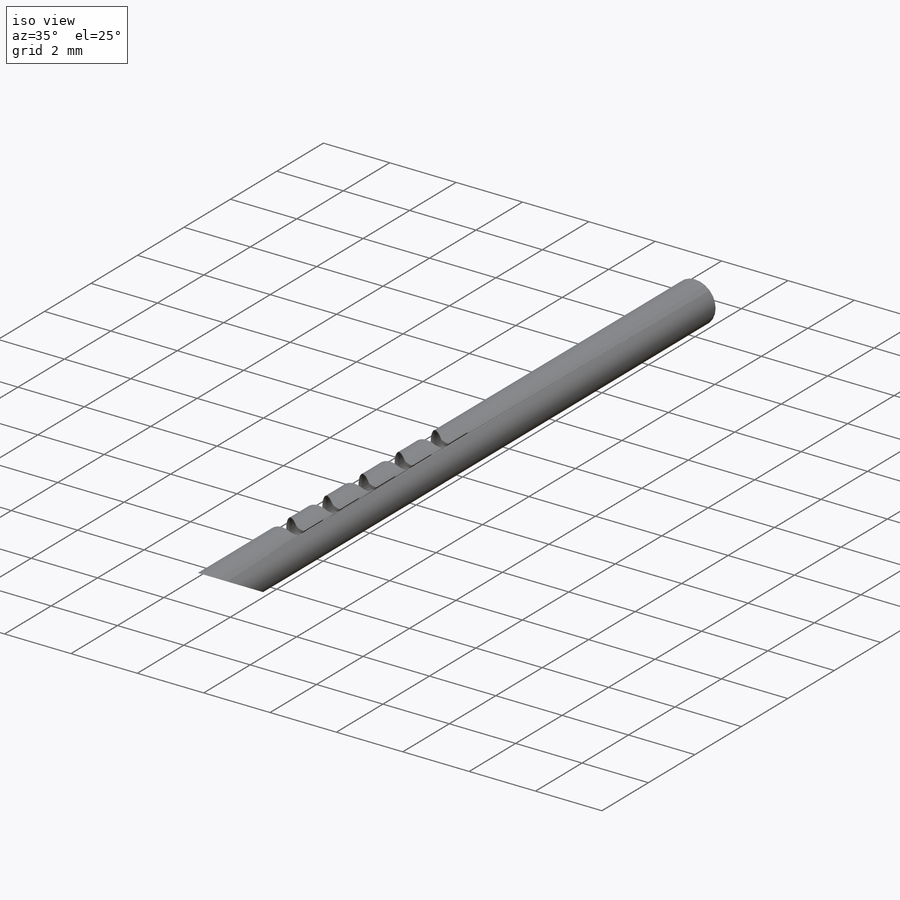
[diagram: iso view]
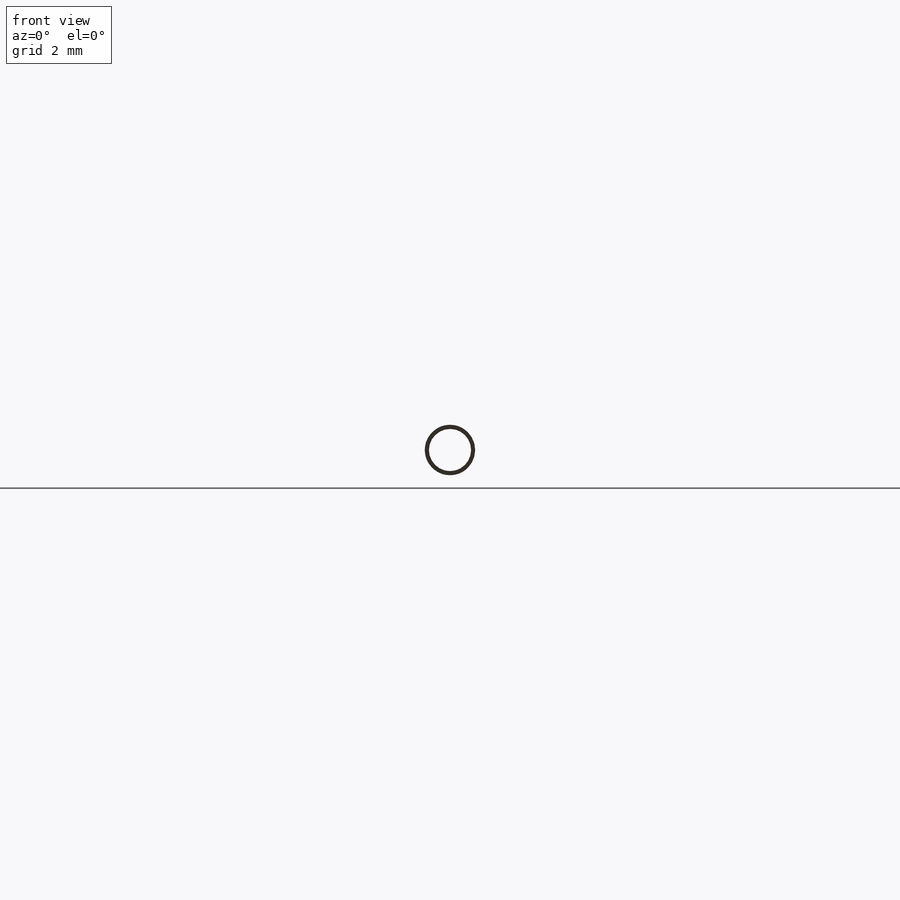
[diagram: front view]
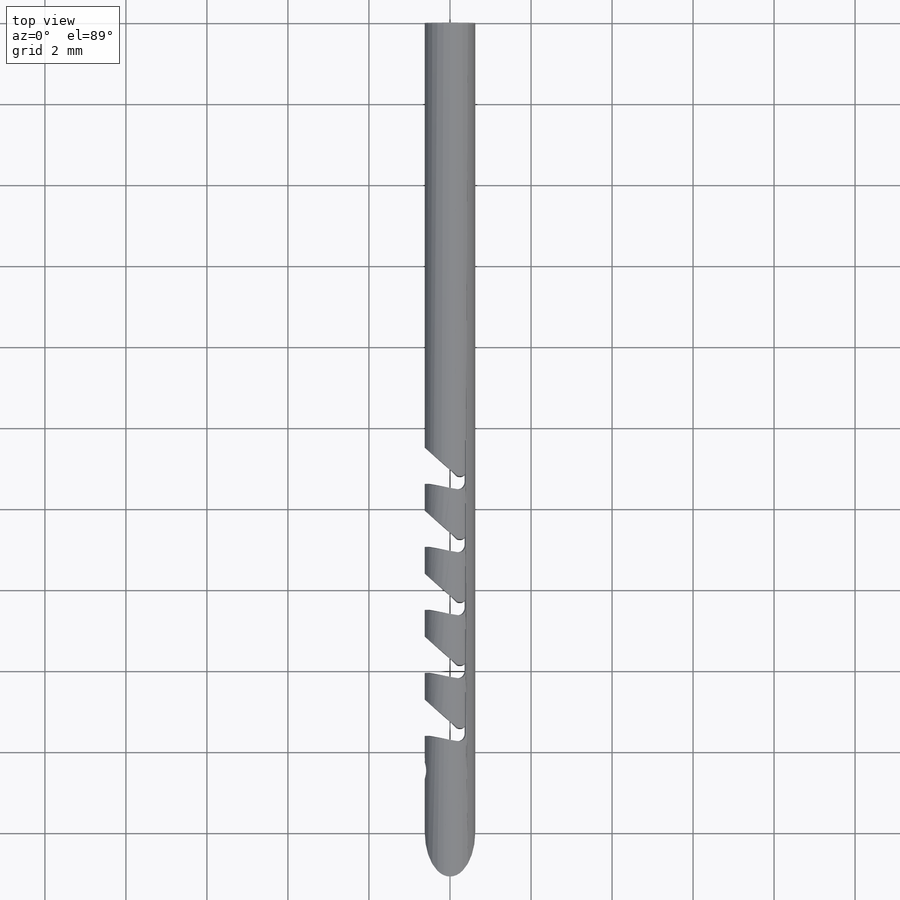
[diagram: top view]
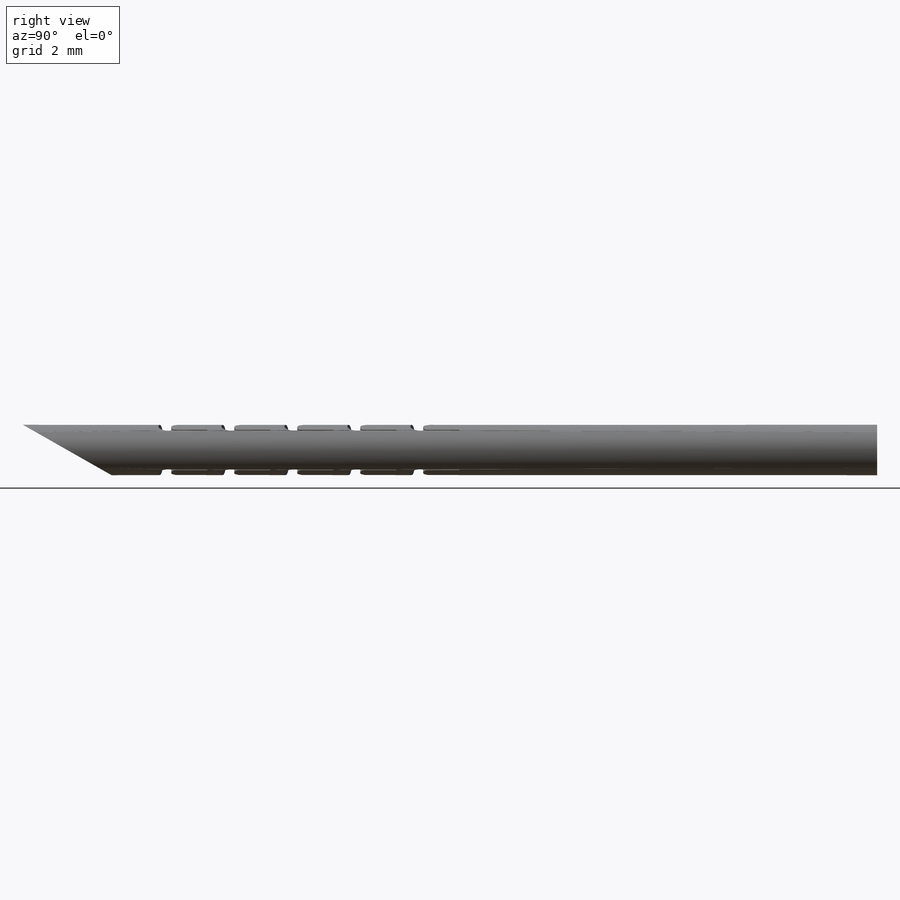
[diagram: right view]
SOLIDWORKS PART (.sldprt)
format: sldprt  version: not decoded by parser v0  size: 819,200 bytes
history: native  units: mm
features: sketch x11, cut_extrude x3, fillet x3, extrude x3, pattern_linear x2, mirror x2, material x1, surface_op x1, boolean_combine x1 (+14 scaffold rows collapsed; 1 parser-record rows omitted)
feature tree (42):
  scaffold x14  (default folders/planes/origin — collapsed)
  material  "Material <not specified>"
  sketch  "Sketch1"  dims[D1=0.622mm]
  parser-record x1  (decoder bookkeeping rows leaked as tree rows — omitted from the tree; the rows remain in map.json)
  surface_op  "Surface-Extrude1"
  sketch  "Sketch3"  dims[c1.D4=~1.041228mm c1.D1=0.3732mm c1.D2=~0.503794mm c2.D2=15.0deg c2.D3=~0.520614mm c2.D4=~0.042451mm]
  sketch  "3DSketch1"  dims[c1.D1=~0.688712mm c2.D1=0.0mm c3.D1=~1.404961mm c4.D1=0.0mm c5.D1=0.311mm c5.D2=1.244mm c5.D3=~0.065037mm c6.D3=~0.01432mm c7.D3=~1.28053mm c8.D3=~0.394529mm c9.D3=~0.126738mm c10.D3=~1.476338mm c11.D3=0.02mm]
  sketch  "Sketch4"  dims[c1.D2=~0.096809mm c1.D10=~0.378569mm c1.D5=~0.193326mm c1.D1=0.311mm c2.D2=0.3732mm c2.D3=~1.155624mm c3.D3=35.0deg c3.D4=0.9952mm c3.D5=0.9952mm c3.D2=~0.307039mm c3.D6=0.7403mm c4.D3=0.622mm c4.D4=0.175mm c4.D6=~0.513245mm c4.D2=~0.327975mm c5.D6=~0.023466mm c5.D2=~0.096809mm c6.D6=~0.914157mm c6.D2=0.894mm c7.D6=1.0152mm c7.D7=1.244mm c7.D8=0.3932mm c7.D9=1.0574mm c7.D10=~0.329476mm c7.D5=0.9952mm c8.D10=~0.640912mm c8.D5=0.3mm c8.D1=~0.101386mm]
  cut_extrude  "Cut-Extrude1"  [1 undecoded]
  sketch  "3DSketch3"  dims[c1.D1=~0.834388mm c2.D1=~0.93274mm c3.D1=~0.834388mm c3.D2=~0.811743mm c4.D1=0.311mm c4.D2=~0.805021mm c5.D2=~0.209513mm c6.D2=~1.475119mm c7.D2=~0.848041mm c8.D2=~1.424856mm c8.D3=~1.424856mm c9.D2=1.244mm c9.D3=~0.044562mm c10.D3=~1.40984mm c11.D3=~0.227643mm c12.D3=~0.044562mm]
  sketch  "3DSketch1<2>"
  fillet  "Fillet4"  Radius=0.2mm Persist_Attrib_Count_Val=2
  fillet  "ANSYS_Persist_Key_1"  Radius=0mm ANS_PERSIST_KEY=0mm ANSYS_Persist_Key_Value=0mm
  pattern_linear  "LPattern3"  Count1=5 Count2=1 Spacing1=1.555mm Spacing2=50mm
  fillet  "ANSYS_Persist_Key_2"  Radius=0mm ANSYS_Persist_Key_Value=0mm
  boolean_combine  "Combine1"
  sketch  "Sketch5"  dims[D1=~1.518856mm]
  extrude  "Boss-Extrude1"  Depth=10mm
  sketch  "Sketch6"  dims[D1=~2.125744mm]
  extrude  "Boss-Extrude2"  Depth=3mm
  sketch  "Sketch7"  dims[c1.D2=0.4mm c1.D1=1.5mm c2.D2=~0.101858mm c2.D1=0.75mm]
  cut_extrude  "Cut-Extrude2"  [1 undecoded]
  mirror  "Mirror1"
  pattern_linear  "LPattern4"  Count1=5 Count2=1 Spacing1=15.4mm Spacing2=10mm
  mirror  "Combine2"
  sketch  "Sketch9"  dims[D1=1.244mm]
  extrude  "Boss-Extrude3"  Depth=2mm
  sketch  "Sketch10"  dims[D1=~2.189396mm]
  cut_extrude  "Cut-Extrude3"  Depth=10mm
decode coverage: 19 of 26 modeling features carry decoded parameters
note: ~ marks probable driven/reference dimensions
note: 2 parameter values undecoded
note: suppression state not decoded; provenance and decode notes live in map.json
